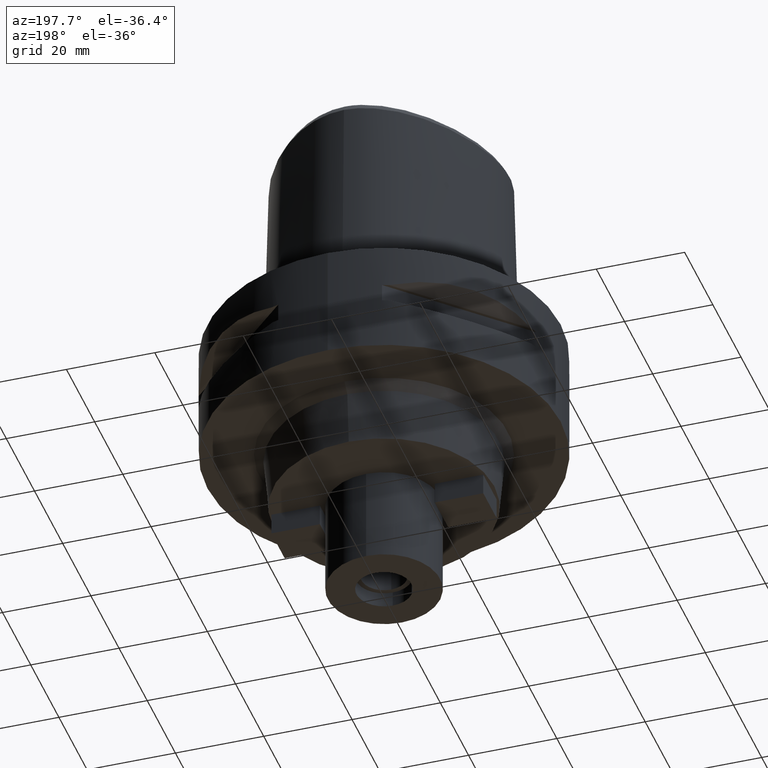
[diagram: clean part render]
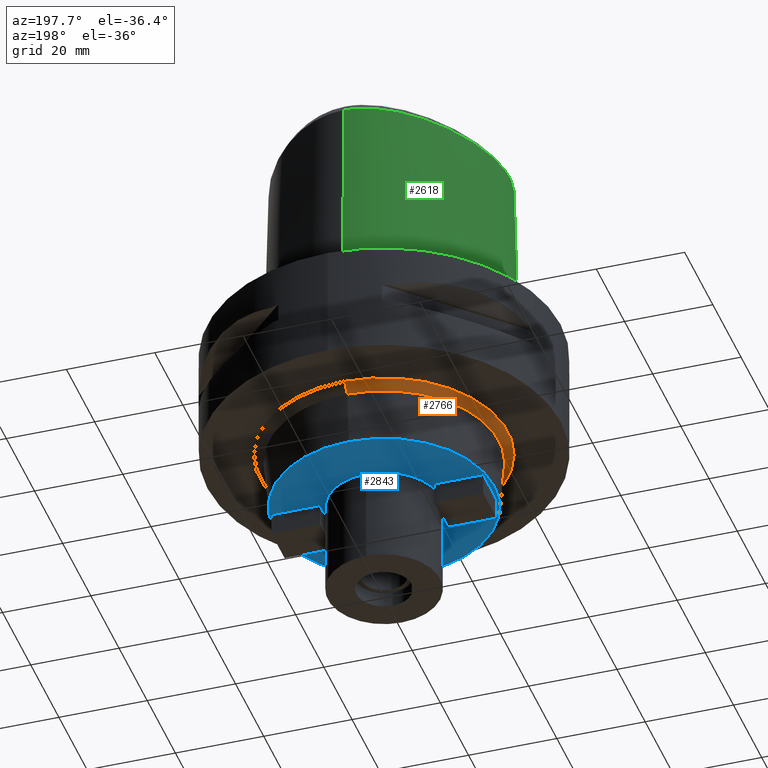
[diagram: same view with three faces highlighted in distinct colors, each labeled with its STEP entity id]
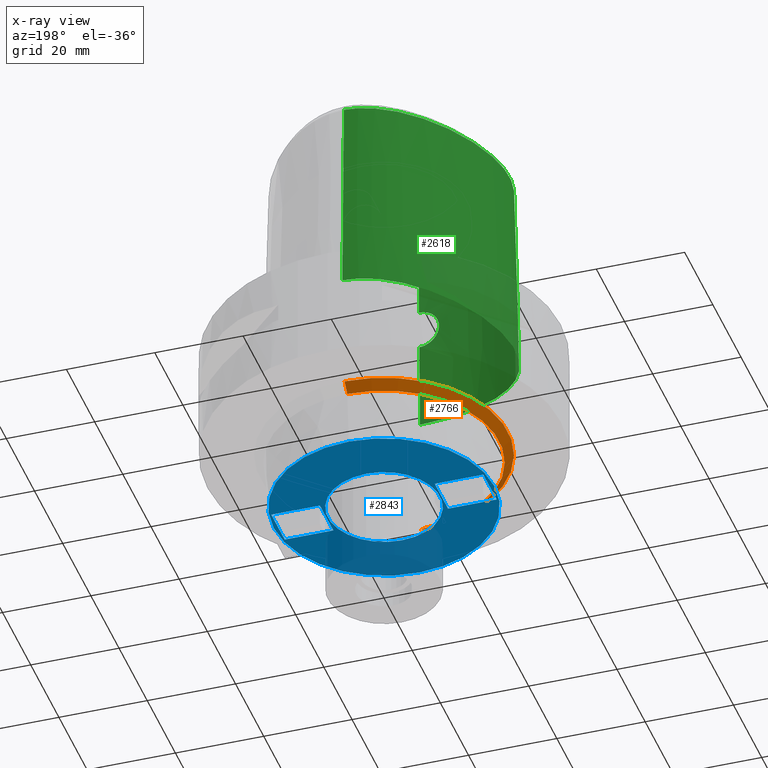
[diagram: x-ray of the same camera — body ghosted, the three highlighted faces saturated]
A machine part, auxiliary view with three faces highlighted in distinct colors.
The next image is the same camera in x-ray (body ghosted, the three faces saturated) — at least one of them is partly hidden behind the body in this view.
Their STEP definitions:

[orange] entity #2766 — the highlighted conical surface has half-angle 45 deg.
#541=CARTESIAN_POINT('',(0.E0,0.E0,-2.6E1));
#542=DIRECTION('',(0.E0,0.E0,-1.E0));
#543=DIRECTION('',(0.E0,-1.E0,0.E0));
#544=AXIS2_PLACEMENT_3D('',#541,#542,#543);
#557=DIRECTION('',(0.E0,7.071067811860E-1,-7.071067811871E-1));
#558=VECTOR('',#557,2.828427124744E0);
#559=CARTESIAN_POINT('',(0.E0,-2.804986396231E1,-2.6E1));
#560=LINE('',#559,#558);
#564=CARTESIAN_POINT('',(0.E0,0.E0,-2.8E1));
#565=DIRECTION('',(0.E0,0.E0,-1.E0));
#566=DIRECTION('',(0.E0,-1.E0,0.E0));
#567=AXIS2_PLACEMENT_3D('',#564,#565,#566);
#572=DIRECTION('',(0.E0,-7.071067811860E-1,-7.071067811871E-1));
#573=VECTOR('',#572,2.828427124744E0);
#574=CARTESIAN_POINT('',(0.E0,2.804986396231E1,-2.6E1));
#575=LINE('',#574,#573);
#1766=CARTESIAN_POINT('',(0.E0,-2.804986396231E1,-2.6E1));
#1767=CARTESIAN_POINT('',(0.E0,2.804986396231E1,-2.6E1));
#1768=VERTEX_POINT('',#1766);
#1769=VERTEX_POINT('',#1767);
#1770=CARTESIAN_POINT('',(0.E0,2.604986396231E1,-2.8E1));
#1771=VERTEX_POINT('',#1770);
#1772=CARTESIAN_POINT('',(0.E0,-2.604986396231E1,-2.8E1));
#1773=VERTEX_POINT('',#1772);
#2752=CARTESIAN_POINT('',(0.E0,0.E0,-2.7E1));
#2753=DIRECTION('',(0.E0,0.E0,1.E0));
#2754=DIRECTION('',(0.E0,1.E0,0.E0));
#2755=AXIS2_PLACEMENT_3D('',#2752,#2753,#2754);
#2756=CONICAL_SURFACE('',#2755,2.704986396231E1,4.5E1);
#2758=ORIENTED_EDGE('',*,*,#2757,.F.);
#2759=ORIENTED_EDGE('',*,*,#2745,.F.);
#2761=ORIENTED_EDGE('',*,*,#2760,.T.);
#2763=ORIENTED_EDGE('',*,*,#2762,.T.);
#2764=EDGE_LOOP('',(#2758,#2759,#2761,#2763));
#2765=FACE_OUTER_BOUND('',#2764,.F.);
#545=CIRCLE('',#544,2.804986396231E1);
#568=CIRCLE('',#567,2.604986396231E1);
#2745=EDGE_CURVE('',#1768,#1769,#545,.T.);
#2757=EDGE_CURVE('',#1769,#1771,#575,.T.);
#2760=EDGE_CURVE('',#1768,#1773,#560,.T.);
#2762=EDGE_CURVE('',#1773,#1771,#568,.T.);
#2766=ADVANCED_FACE('',(#2765),#2756,.T.);

[blue] entity #2843 — the highlighted planar face has unit normal (0, 0, -1).
#601=CARTESIAN_POINT('',(0.E0,0.E0,-4.E1));
#602=DIRECTION('',(0.E0,0.E0,1.E0));
#603=DIRECTION('',(0.E0,-1.E0,0.E0));
#604=AXIS2_PLACEMENT_3D('',#601,#602,#603);
#609=CARTESIAN_POINT('',(0.E0,0.E0,-4.E1));
#610=DIRECTION('',(0.E0,0.E0,1.E0));
#611=DIRECTION('',(0.E0,1.E0,0.E0));
#612=AXIS2_PLACEMENT_3D('',#609,#610,#611);
#617=CARTESIAN_POINT('',(0.E0,1.262610849921E-14,-4.E1));
#618=DIRECTION('',(0.E0,0.E0,-1.E0));
#619=DIRECTION('',(0.E0,-1.E0,0.E0));
#620=AXIS2_PLACEMENT_3D('',#617,#618,#619);
#625=CARTESIAN_POINT('',(0.E0,1.262610849921E-14,-4.E1));
#626=DIRECTION('',(0.E0,0.E0,-1.E0));
#627=DIRECTION('',(0.E0,1.E0,0.E0));
#628=AXIS2_PLACEMENT_3D('',#625,#626,#627);
#633=DIRECTION('',(1.E0,0.E0,0.E0));
#634=VECTOR('',#633,1.1E1);
#635=CARTESIAN_POINT('',(1.3E1,4.75E0,-4.E1));
#636=LINE('',#635,#634);
#640=DIRECTION('',(0.E0,-1.E0,0.E0));
#641=VECTOR('',#640,9.5E0);
#642=CARTESIAN_POINT('',(2.4E1,4.75E0,-4.E1));
#643=LINE('',#642,#641);
#647=DIRECTION('',(-1.E0,0.E0,0.E0));
#648=VECTOR('',#647,1.1E1);
#649=CARTESIAN_POINT('',(-1.3E1,-4.75E0,-4.E1));
#650=LINE('',#649,#648);
#654=DIRECTION('',(0.E0,1.E0,0.E0));
#655=VECTOR('',#654,9.5E0);
#656=CARTESIAN_POINT('',(-2.4E1,-4.75E0,-4.E1));
#657=LINE('',#656,#655);
#1260=DIRECTION('',(1.E0,0.E0,0.E0));
#1261=VECTOR('',#1260,1.1E1);
#1262=CARTESIAN_POINT('',(1.3E1,-4.75E0,-4.E1));
#1263=LINE('',#1262,#1261);
#1302=DIRECTION('',(0.E0,-1.E0,0.E0));
#1303=VECTOR('',#1302,9.5E0);
#1304=CARTESIAN_POINT('',(1.3E1,4.75E0,-4.E1));
#1305=LINE('',#1304,#1303);
#1330=DIRECTION('',(-1.E0,0.E0,0.E0));
#1331=VECTOR('',#1330,1.1E1);
#1332=CARTESIAN_POINT('',(-1.3E1,4.75E0,-4.E1));
#1333=LINE('',#1332,#1331);
#1372=DIRECTION('',(0.E0,1.E0,0.E0));
#1373=VECTOR('',#1372,9.5E0);
#1374=CARTESIAN_POINT('',(-1.3E1,-4.75E0,-4.E1));
#1375=LINE('',#1374,#1373);
#1774=CARTESIAN_POINT('',(0.E0,2.5E1,-4.E1));
#1775=VERTEX_POINT('',#1774);
#1776=CARTESIAN_POINT('',(0.E0,-2.5E1,-4.E1));
#1777=VERTEX_POINT('',#1776);
#1778=CARTESIAN_POINT('',(0.E0,-1.27E1,-4.E1));
#1779=CARTESIAN_POINT('',(0.E0,1.27E1,-4.E1));
#1780=VERTEX_POINT('',#1778);
#1781=VERTEX_POINT('',#1779);
#1782=CARTESIAN_POINT('',(1.3E1,-4.75E0,-4.E1));
#1783=CARTESIAN_POINT('',(2.4E1,-4.75E0,-4.E1));
#1784=VERTEX_POINT('',#1782);
#1785=VERTEX_POINT('',#1783);
#1786=CARTESIAN_POINT('',(1.3E1,4.75E0,-4.E1));
#1787=VERTEX_POINT('',#1786);
#1788=CARTESIAN_POINT('',(2.4E1,4.75E0,-4.E1));
#1789=VERTEX_POINT('',#1788);
#1790=CARTESIAN_POINT('',(-1.3E1,4.75E0,-4.E1));
#1791=CARTESIAN_POINT('',(-2.4E1,4.75E0,-4.E1));
#1792=VERTEX_POINT('',#1790);
#1793=VERTEX_POINT('',#1791);
#1794=CARTESIAN_POINT('',(-1.3E1,-4.75E0,-4.E1));
#1795=VERTEX_POINT('',#1794);
#1796=CARTESIAN_POINT('',(-2.4E1,-4.75E0,-4.E1));
#1797=VERTEX_POINT('',#1796);
#2808=CARTESIAN_POINT('',(0.E0,0.E0,-4.E1));
#2809=DIRECTION('',(0.E0,0.E0,-1.E0));
#2810=DIRECTION('',(0.E0,-1.E0,0.E0));
#2811=AXIS2_PLACEMENT_3D('',#2808,#2809,#2810);
#2812=PLANE('',#2811);
#2813=ORIENTED_EDGE('',*,*,#2787,.T.);
#2814=ORIENTED_EDGE('',*,*,#2803,.T.);
#2815=EDGE_LOOP('',(#2813,#2814));
#2816=FACE_OUTER_BOUND('',#2815,.F.);
#2818=ORIENTED_EDGE('',*,*,#2817,.T.);
#2820=ORIENTED_EDGE('',*,*,#2819,.T.);
#2821=EDGE_LOOP('',(#2818,#2820));
#2822=FACE_BOUND('',#2821,.F.);
#2824=ORIENTED_EDGE('',*,*,#2823,.F.);
#2826=ORIENTED_EDGE('',*,*,#2825,.F.);
#2828=ORIENTED_EDGE('',*,*,#2827,.T.);
#2830=ORIENTED_EDGE('',*,*,#2829,.T.);
#2831=EDGE_LOOP('',(#2824,#2826,#2828,#2830));
#2832=FACE_BOUND('',#2831,.F.);
#2834=ORIENTED_EDGE('',*,*,#2833,.F.);
#2836=ORIENTED_EDGE('',*,*,#2835,.F.);
#2838=ORIENTED_EDGE('',*,*,#2837,.T.);
#2840=ORIENTED_EDGE('',*,*,#2839,.T.);
#2841=EDGE_LOOP('',(#2834,#2836,#2838,#2840));
#2842=FACE_BOUND('',#2841,.F.);
#605=CIRCLE('',#604,2.5E1);
#613=CIRCLE('',#612,2.5E1);
#621=CIRCLE('',#620,1.27E1);
#629=CIRCLE('',#628,1.27E1);
#2787=EDGE_CURVE('',#1777,#1775,#605,.T.);
#2803=EDGE_CURVE('',#1775,#1777,#613,.T.);
#2817=EDGE_CURVE('',#1780,#1781,#621,.T.);
#2819=EDGE_CURVE('',#1781,#1780,#629,.T.);
#2823=EDGE_CURVE('',#1784,#1785,#1263,.T.);
#2825=EDGE_CURVE('',#1787,#1784,#1305,.T.);
#2827=EDGE_CURVE('',#1787,#1789,#636,.T.);
#2829=EDGE_CURVE('',#1789,#1785,#643,.T.);
#2833=EDGE_CURVE('',#1792,#1793,#1333,.T.);
#2835=EDGE_CURVE('',#1795,#1792,#1375,.T.);
#2837=EDGE_CURVE('',#1795,#1797,#650,.T.);
#2839=EDGE_CURVE('',#1797,#1793,#657,.T.);
#2843=ADVANCED_FACE('',(#2816,#2822,#2832,#2842),#2812,.T.);

[green] entity #2618 — the highlighted face is a freeform B-spline surface patch.
#206=CARTESIAN_POINT('',(-4.472216406693E0,-2.420008985674E1,4.652070903171E1));
#207=CARTESIAN_POINT('',(-5.450192240889E0,-2.410647230672E1,4.652068046684E1));
#208=CARTESIAN_POINT('',(-7.295868125464E0,-2.386544607187E1,4.652073681532E1));
#209=CARTESIAN_POINT('',(-9.676327018139E0,-2.340535491948E1,4.652071071304E1));
#210=CARTESIAN_POINT('',(-1.178100974650E1,-2.287089908615E1,4.652071522701E1));
#211=CARTESIAN_POINT('',(-1.367737467149E1,-2.227086317308E1,4.652071583380E1));
#212=CARTESIAN_POINT('',(-1.542053464101E1,-2.160307738112E1,4.652071916131E1));
#213=CARTESIAN_POINT('',(-1.702540776778E1,-2.087042032937E1,4.652071908659E1));
#214=CARTESIAN_POINT('',(-1.852256335404E1,-2.006201349530E1,4.652071628263E1));
#215=CARTESIAN_POINT('',(-1.991640706217E1,-1.917292833668E1,4.652072048184E1));
#216=CARTESIAN_POINT('',(-2.121970169644E1,-1.818345537821E1,4.652072000007E1));
#217=CARTESIAN_POINT('',(-2.235944946396E1,-1.714332743410E1,4.652071493068E1));
#218=CARTESIAN_POINT('',(-2.331676724925E1,-1.609083257782E1,4.652072138161E1));
#219=CARTESIAN_POINT('',(-2.411502598034E1,-1.502743468807E1,4.652072474034E1));
#220=CARTESIAN_POINT('',(-2.478114849194E1,-1.393594266100E1,4.652072694357E1));
#221=CARTESIAN_POINT('',(-2.534696154085E1,-1.276528132032E1,4.652070916228E1));
#222=CARTESIAN_POINT('',(-2.582385511713E1,-1.148034723413E1,4.652072265577E1));
#223=CARTESIAN_POINT('',(-2.620789791757E1,-1.004935370625E1,4.652071730953E1));
#224=CARTESIAN_POINT('',(-2.647927780078E1,-8.462523166951E0,4.652071748325E1));
#225=CARTESIAN_POINT('',(-2.661513064056E1,-6.824246183821E0,4.652071558199E1));
#226=CARTESIAN_POINT('',(-2.662581815361E1,-5.150643601300E0,4.652071862968E1));
#227=CARTESIAN_POINT('',(-2.651661760815E1,-3.424791551732E0,4.652071376667E1));
#228=CARTESIAN_POINT('',(-2.628626447768E1,-1.628090378449E0,4.652071918440E1));
#229=CARTESIAN_POINT('',(-2.592680617529E1,2.592637633223E-1,4.652071722667E1));
#230=CARTESIAN_POINT('',(-2.542085472877E1,2.270667284737E0,4.652071428316E1));
#231=CARTESIAN_POINT('',(-2.473380500959E1,4.459301869651E0,4.652071660503E1));
#232=CARTESIAN_POINT('',(-2.381314353716E1,6.881940109828E0,4.652069718368E1));
#233=CARTESIAN_POINT('',(-2.257439079201E1,9.613100221697E0,4.652071169456E1));
#234=CARTESIAN_POINT('',(-2.097407826792E1,1.257387181105E1,4.652071797991E1));
#235=CARTESIAN_POINT('',(-1.918870299019E1,1.536821832303E1,4.652069570471E1));
#236=CARTESIAN_POINT('',(-1.744924979126E1,1.771828165137E1,4.652071748362E1));
#237=CARTESIAN_POINT('',(-1.582171189436E1,1.965319312990E1,4.652071513298E1));
#238=CARTESIAN_POINT('',(-1.427763390033E1,2.128298112821E1,4.652071874395E1));
#239=CARTESIAN_POINT('',(-1.281223002315E1,2.266153840913E1,4.652071541167E1));
#240=CARTESIAN_POINT('',(-1.136857602489E1,2.386991507554E1,4.652071985536E1));
#241=CARTESIAN_POINT('',(-9.924506522521E0,2.493449388603E1,4.652071110653E1));
#242=CARTESIAN_POINT('',(-8.471074988755E0,2.586480663670E1,4.652071920670E1));
#243=CARTESIAN_POINT('',(-6.996944931033E0,2.666515511058E1,4.652071561147E1));
#244=CARTESIAN_POINT('',(-5.505662088692E0,2.732782231994E1,4.652072023718E1));
#245=CARTESIAN_POINT('',(-4.020607406773E0,2.783675802148E1,4.652071517660E1));
#246=CARTESIAN_POINT('',(-2.613174342375E0,2.817766923255E1,4.652072330322E1));
#247=CARTESIAN_POINT('',(-1.273124606858E0,2.837120251908E1,4.652065572520E1));
#248=CARTESIAN_POINT('',(-4.250220118877E-1,2.841206021535E1,4.652071719450E1));
#249=CARTESIAN_POINT('',(-1.145859173271E-11,2.841206021535E1,
4.652071719451E1));
#261=CARTESIAN_POINT('',(-4.472216406693E0,-2.420008985674E1,4.652070903171E1));
#262=CARTESIAN_POINT('',(-4.487210721186E0,-2.421685468864E1,4.579601479726E1));
#263=CARTESIAN_POINT('',(-4.516393775219E0,-2.424985511903E1,4.434671166025E1));
#264=CARTESIAN_POINT('',(-4.559961265872E0,-2.430022578469E1,4.217314625867E1));
#265=CARTESIAN_POINT('',(-4.588866160228E0,-2.433440435351E1,4.072435065553E1));
#266=CARTESIAN_POINT('',(-4.602925679451E0,-2.435121855889E1,4.E1));
#271=DIRECTION('',(1.388127457203E-9,-2.499239851702E-2,-9.996876412242E-1));
#272=VECTOR('',#271,1.045326522127E1);
#273=CARTESIAN_POINT('',(-1.451045074373E-8,-2.457504746727E1,
4.000000005214E1));
#274=LINE('',#273,#272);
#278=CARTESIAN_POINT('',(1.372734075406E-14,-2.483629963748E1,2.955E1));
#279=CARTESIAN_POINT('',(-3.648044452041E-1,-2.483629963748E1,2.955E1));
#280=CARTESIAN_POINT('',(-1.095673786418E0,-2.483004582462E1,2.946166176259E1));
#281=CARTESIAN_POINT('',(-2.131495839299E0,-2.480437039649E1,2.907075727029E1));
#282=CARTESIAN_POINT('',(-3.047884755570E0,-2.476955773457E1,2.843738326216E1));
#283=CARTESIAN_POINT('',(-3.772921718048E0,-2.473701095726E1,2.762051092436E1));
#284=CARTESIAN_POINT('',(-4.291500546626E0,-2.471661736674E1,2.664132498582E1));
#285=CARTESIAN_POINT('',(-4.559019168764E0,-2.471798807533E1,2.556841380836E1));
#286=CARTESIAN_POINT('',(-4.562529801493E0,-2.474539034349E1,2.446379196496E1));
#287=CARTESIAN_POINT('',(-4.304823227467E0,-2.479689039571E1,2.339473854995E1));
#288=CARTESIAN_POINT('',(-3.794201128708E0,-2.486598871454E1,2.240963609405E1));
#289=CARTESIAN_POINT('',(-3.069463643498E0,-2.493998733702E1,2.158041546141E1));
#290=CARTESIAN_POINT('',(-2.142564054600E0,-2.500758912759E1,2.093356923319E1));
#291=CARTESIAN_POINT('',(-1.095369505964E0,-2.505323388729E1,2.053768870060E1));
#292=CARTESIAN_POINT('',(-3.637029399209E-1,-2.506378435149E1,2.045E1));
#293=CARTESIAN_POINT('',(-2.730614060677E-12,-2.506378435149E1,2.045E1));
#298=DIRECTION('',(-9.395787097294E-13,-2.499051295404E-2,-9.996876883619E-1));
#299=VECTOR('',#298,2.045638876829E1);
#300=CARTESIAN_POINT('',(-2.730614060677E-12,-2.506378435149E1,2.045E1));
#301=LINE('',#300,#299);
#366=CARTESIAN_POINT('',(4.740256914741E-11,2.957499999999E1,
1.130207039068E-13));
#367=CARTESIAN_POINT('',(-4.515464699615E-1,2.957499999999E1,
1.130207039068E-13));
#368=CARTESIAN_POINT('',(-1.372916760122E0,2.953142679759E1,
-5.245309122717E-14));
#369=CARTESIAN_POINT('',(-2.804256439064E0,2.932635086986E1,
1.405476343484E-14));
#370=CARTESIAN_POINT('',(-4.301576252142E0,2.896724611738E1,0.E0));
#371=CARTESIAN_POINT('',(-5.873440871111E0,2.843498207136E1,0.E0));
#372=CARTESIAN_POINT('',(-7.529571954786E0,2.770512475858E1,0.E0));
#373=CARTESIAN_POINT('',(-9.276086426280E0,2.674858464922E1,0.E0));
#374=CARTESIAN_POINT('',(-1.111404831879E1,2.553317992239E1,0.E0));
#375=CARTESIAN_POINT('',(-1.303704788796E1,2.402608189558E1,0.E0));
#376=CARTESIAN_POINT('',(-1.502609410289E1,2.220040061900E1,0.E0));
#377=CARTESIAN_POINT('',(-1.704826678371E1,2.004143001713E1,0.E0));
#378=CARTESIAN_POINT('',(-1.905270363987E1,1.755833618174E1,0.E0));
#379=CARTESIAN_POINT('',(-2.097374016196E1,1.479270521397E1,0.E0));
#380=CARTESIAN_POINT('',(-2.273943649262E1,1.181923320442E1,0.E0));
#381=CARTESIAN_POINT('',(-2.426895273946E1,8.768746132568E0,0.E0));
#382=CARTESIAN_POINT('',(-2.551717833026E1,5.758149709151E0,0.E0));
#383=CARTESIAN_POINT('',(-2.647450202420E1,2.870488497827E0,0.E0));
#384=CARTESIAN_POINT('',(-2.715214958148E1,1.639445629826E-1,0.E0));
#385=CARTESIAN_POINT('',(-2.757600296869E1,-2.330151140753E0,0.E0));
#386=CARTESIAN_POINT('',(-2.777853028434E1,-4.604936563568E0,0.E0));
#387=CARTESIAN_POINT('',(-2.779201896892E1,-6.665907962843E0,0.E0));
#388=CARTESIAN_POINT('',(-2.764550045227E1,-8.529293279311E0,0.E0));
#389=CARTESIAN_POINT('',(-2.736302078182E1,-1.021361246240E1,0.E0));
#390=CARTESIAN_POINT('',(-2.696253231088E1,-1.174092309720E1,0.E0));
#391=CARTESIAN_POINT('',(-2.645808390493E1,-1.312695917105E1,0.E0));
#392=CARTESIAN_POINT('',(-2.585698413882E1,-1.439407758812E1,0.E0));
#393=CARTESIAN_POINT('',(-2.514815078172E1,-1.557755152720E1,0.E0));
#394=CARTESIAN_POINT('',(-2.430633309777E1,-1.671998998328E1,0.E0));
#395=CARTESIAN_POINT('',(-2.330319969480E1,-1.784429725758E1,0.E0));
#396=CARTESIAN_POINT('',(-2.212004439291E1,-1.894721216630E1,0.E0));
#397=CARTESIAN_POINT('',(-2.073317683032E1,-2.002557323264E1,0.E0));
#398=CARTESIAN_POINT('',(-1.911408564811E1,-2.107266506045E1,0.E0));
#399=CARTESIAN_POINT('',(-1.723402086985E1,-2.207536005230E1,0.E0));
#400=CARTESIAN_POINT('',(-1.506569661307E1,-2.301407899118E1,0.E0));
#401=CARTESIAN_POINT('',(-1.259171130108E1,-2.386112128053E1,0.E0));
#402=CARTESIAN_POINT('',(-9.807532041514E0,-2.458256984343E1,0.E0));
#403=CARTESIAN_POINT('',(-6.739703935874E0,-2.513937213858E1,
1.485092390446E-14));
#404=CARTESIAN_POINT('',(-3.433528326300E0,-2.549351538963E1,
-5.542440255078E-14));
#405=CARTESIAN_POINT('',(-1.160946323202E0,-2.5575E1,1.194229900155E-13));
#406=CARTESIAN_POINT('',(-2.195100142531E-11,-2.5575E1,1.194229900155E-13));
#1057=DIRECTION('',(1.264872542883E-12,2.499051293969E-2,-9.996876883622E-1));
#1058=VECTOR('',#1057,4.653525069487E1);
#1059=CARTESIAN_POINT('',(-1.145859173271E-11,2.841206021535E1,
4.652071719451E1));
#1060=LINE('',#1059,#1058);
#1074=CARTESIAN_POINT('',(-1.451045074373E-8,-2.457504746727E1,
4.000000005214E1));
#1075=CARTESIAN_POINT('',(-5.124223382063E-1,-2.457504746706E1,
4.000000005214E1));
#1076=CARTESIAN_POINT('',(-1.536621750938E0,-2.455890147190E1,
3.999999997567E1));
#1077=CARTESIAN_POINT('',(-3.071957665953E0,-2.448406991543E1,
4.000000000695E1));
#1078=CARTESIAN_POINT('',(-4.092928315870E0,-2.440134250294E1,4.E1));
#1079=CARTESIAN_POINT('',(-4.602925679451E0,-2.435121855889E1,4.E1));
#1695=CARTESIAN_POINT('',(-4.602965076336E0,-2.435127131301E1,4.E1));
#1696=VERTEX_POINT('',#1695);
#1697=VERTEX_POINT('',#261);
#1698=CARTESIAN_POINT('',(-1.145859173271E-11,2.841206021535E1,
4.652071719451E1));
#1699=VERTEX_POINT('',#1698);
#1700=VERTEX_POINT('',#366);
#1701=VERTEX_POINT('',#406);
#1702=VERTEX_POINT('',#1074);
#1703=CARTESIAN_POINT('',(1.372734075387E-14,-2.483629963748E1,2.955E1));
#1704=VERTEX_POINT('',#1703);
#1705=VERTEX_POINT('',#293);
#2493=CARTESIAN_POINT('',(9.115101686235E-1,2.956851176057E1,
-9.304145002686E-1));
#2494=CARTESIAN_POINT('',(8.850788437967E-1,2.916624660521E1,1.519677017105E1));
#2495=CARTESIAN_POINT('',(8.586475189698E-1,2.876398144986E1,3.132395484238E1));
#2496=CARTESIAN_POINT('',(8.322161941430E-1,2.836171629451E1,4.745113951370E1));
#2497=CARTESIAN_POINT('',(6.077626424070E-1,2.958843421425E1,
-9.304145002686E-1));
#2498=CARTESIAN_POINT('',(5.902542483099E-1,2.918556699455E1,1.519677017105E1));
#2499=CARTESIAN_POINT('',(5.727458542128E-1,2.878269977485E1,3.132395484238E1));
#2500=CARTESIAN_POINT('',(5.552374601157E-1,2.837983255515E1,4.745113951370E1));
#2501=CARTESIAN_POINT('',(-7.475778414593E-1,2.963225228787E1,
-9.304145002686E-1));
#2502=CARTESIAN_POINT('',(-7.257524939728E-1,2.922811258682E1,
1.519677017105E1));
#2503=CARTESIAN_POINT('',(-7.039271464863E-1,2.882397288577E1,
3.132395484238E1));
#2504=CARTESIAN_POINT('',(-6.821017989997E-1,2.841983318471E1,
4.745113951370E1));
#2505=CARTESIAN_POINT('',(-3.154109046632E0,2.936302093432E1,
-9.304145002686E-1));
#2506=CARTESIAN_POINT('',(-3.067023396541E0,2.896669973937E1,1.519677017105E1));
#2507=CARTESIAN_POINT('',(-2.979937746450E0,2.857037854443E1,3.132395484238E1));
#2508=CARTESIAN_POINT('',(-2.892852096359E0,2.817405734948E1,4.745113951370E1));
#2509=CARTESIAN_POINT('',(-6.271543170741E0,2.837237220576E1,
-9.304145002686E-1));
#2510=CARTESIAN_POINT('',(-6.114741920969E0,2.799897532672E1,1.519677017105E1));
#2511=CARTESIAN_POINT('',(-5.957940671198E0,2.762557844768E1,3.132395484238E1));
#2512=CARTESIAN_POINT('',(-5.801139421427E0,2.725218156864E1,4.745113951370E1));
#2513=CARTESIAN_POINT('',(-9.316733117574E0,2.681182150690E1,
-9.304145002686E-1));
#2514=CARTESIAN_POINT('',(-9.105791460926E0,2.646675913731E1,1.519677017105E1));
#2515=CARTESIAN_POINT('',(-8.894849804279E0,2.612169676773E1,3.132395484238E1));
#2516=CARTESIAN_POINT('',(-8.683908147631E0,2.577663439814E1,4.745113951370E1));
#2517=CARTESIAN_POINT('',(-1.323332856331E1,2.406149249949E1,
-9.304145002686E-1));
#2518=CARTESIAN_POINT('',(-1.296695409375E1,2.375598709178E1,1.519677017105E1));
#2519=CARTESIAN_POINT('',(-1.270057962419E1,2.345048168407E1,3.132395484238E1));
#2520=CARTESIAN_POINT('',(-1.243420515463E1,2.314497627636E1,4.745113951370E1));
#2521=CARTESIAN_POINT('',(-1.777103258674E1,1.953703864484E1,
-9.304145002686E-1));
#2522=CARTESIAN_POINT('',(-1.745811261950E1,1.927961880083E1,1.519677017105E1));
#2523=CARTESIAN_POINT('',(-1.714519265227E1,1.902219895682E1,3.132395484238E1));
#2524=CARTESIAN_POINT('',(-1.683227268503E1,1.876477911281E1,4.745113951370E1));
#2525=CARTESIAN_POINT('',(-2.235908247819E1,1.290902243080E1,
-9.304145002686E-1));
#2526=CARTESIAN_POINT('',(-2.200846692271E1,1.270659196355E1,1.519677017105E1));
#2527=CARTESIAN_POINT('',(-2.165785136722E1,1.250416149629E1,3.132395484238E1));
#2528=CARTESIAN_POINT('',(-2.130723581174E1,1.230173102903E1,4.745113951370E1));
#2529=CARTESIAN_POINT('',(-2.523075706237E1,6.836210430790E0,
-9.304145002686E-1));
#2530=CARTESIAN_POINT('',(-2.485610464562E1,6.683875463775E0,1.519677017105E1));
#2531=CARTESIAN_POINT('',(-2.448145222886E1,6.531540496761E0,3.132395484238E1));
#2532=CARTESIAN_POINT('',(-2.410679981211E1,6.379205529746E0,4.745113951370E1));
#2533=CARTESIAN_POINT('',(-2.679474625830E1,1.906447387483E0,
-9.304145002686E-1));
#2534=CARTESIAN_POINT('',(-2.640443225466E1,1.802817671104E0,1.519677017105E1));
#2535=CARTESIAN_POINT('',(-2.601411825103E1,1.699187954725E0,3.132395484238E1));
#2536=CARTESIAN_POINT('',(-2.562380424739E1,1.595558238346E0,4.745113951370E1));
#2537=CARTESIAN_POINT('',(-2.756041892299E1,-1.762105663674E0,
-9.304145002686E-1));
#2538=CARTESIAN_POINT('',(-2.716099298029E1,-1.823107493332E0,
1.519677017105E1));
#2539=CARTESIAN_POINT('',(-2.676156703758E1,-1.884109322991E0,
3.132395484238E1));
#2540=CARTESIAN_POINT('',(-2.636214109488E1,-1.945111152650E0,
4.745113951370E1));
#2541=CARTESIAN_POINT('',(-2.787808443159E1,-5.337383714054E0,
-9.304145002686E-1));
#2542=CARTESIAN_POINT('',(-2.747379250646E1,-5.347524337125E0,
1.519677017105E1));
#2543=CARTESIAN_POINT('',(-2.706950058133E1,-5.357664960197E0,
3.132395484238E1));
#2544=CARTESIAN_POINT('',(-2.666520865620E1,-5.367805583268E0,
4.745113951370E1));
#2545=CARTESIAN_POINT('',(-2.770696775960E1,-8.754869100908E0,
-9.304145002686E-1));
#2546=CARTESIAN_POINT('',(-2.730517725919E1,-8.703986976835E0,
1.519677017105E1));
#2547=CARTESIAN_POINT('',(-2.690338675878E1,-8.653104852762E0,
3.132395484238E1));
#2548=CARTESIAN_POINT('',(-2.650159625837E1,-8.602222728688E0,
4.745113951370E1));
#2549=CARTESIAN_POINT('',(-2.712297208038E1,-1.141745865557E1,
-9.304145002686E-1));
#2550=CARTESIAN_POINT('',(-2.673375369802E1,-1.130662581331E1,
1.519677017105E1));
#2551=CARTESIAN_POINT('',(-2.634453531566E1,-1.119579297106E1,
3.132395484238E1));
#2552=CARTESIAN_POINT('',(-2.595531693331E1,-1.108496012881E1,
4.745113951370E1));
#2553=CARTESIAN_POINT('',(-2.637046814594E1,-1.340391019843E1,
-9.304145002686E-1));
#2554=CARTESIAN_POINT('',(-2.600056140103E1,-1.324168030058E1,
1.519677017105E1));
#2555=CARTESIAN_POINT('',(-2.563065465613E1,-1.307945040273E1,
3.132395484238E1));
#2556=CARTESIAN_POINT('',(-2.526074791123E1,-1.291722050488E1,
4.745113951370E1));
#2557=CARTESIAN_POINT('',(-2.565830880215E1,-1.481383149389E1,
-9.304145002686E-1));
#2558=CARTESIAN_POINT('',(-2.530843714061E1,-1.461183299568E1,
1.519677017105E1));
#2559=CARTESIAN_POINT('',(-2.495856547908E1,-1.440983449747E1,
3.132395484238E1));
#2560=CARTESIAN_POINT('',(-2.460869381754E1,-1.420783599927E1,
4.745113951370E1));
#2561=CARTESIAN_POINT('',(-2.479336081496E1,-1.613554022487E1,
-9.304145002686E-1));
#2562=CARTESIAN_POINT('',(-2.446791222784E1,-1.589630653555E1,
1.519677017105E1));
#2563=CARTESIAN_POINT('',(-2.414246364072E1,-1.565707284623E1,
3.132395484238E1));
#2564=CARTESIAN_POINT('',(-2.381701505360E1,-1.541783915691E1,
4.745113951370E1));
#2565=CARTESIAN_POINT('',(-2.344929528197E1,-1.778045351989E1,
-9.304145002686E-1));
#2566=CARTESIAN_POINT('',(-2.315870204419E1,-1.749879693548E1,
1.519677017105E1));
#2567=CARTESIAN_POINT('',(-2.286810880640E1,-1.721714035107E1,
3.132395484238E1));
#2568=CARTESIAN_POINT('',(-2.257751556862E1,-1.693548376665E1,
4.745113951370E1));
#2569=CARTESIAN_POINT('',(-2.143542293284E1,-1.961750339179E1,
-9.304145002686E-1));
#2570=CARTESIAN_POINT('',(-2.119046238674E1,-1.929498366329E1,
1.519677017105E1));
#2571=CARTESIAN_POINT('',(-2.094550184064E1,-1.897246393479E1,
3.132395484238E1));
#2572=CARTESIAN_POINT('',(-2.070054129453E1,-1.864994420629E1,
4.745113951370E1));
#2573=CARTESIAN_POINT('',(-1.856135208425E1,-2.147443746742E1,
-9.304145002686E-1));
#2574=CARTESIAN_POINT('',(-1.836798846506E1,-2.111924011543E1,
1.519677017105E1));
#2575=CARTESIAN_POINT('',(-1.817462484587E1,-2.076404276344E1,
3.132395484238E1));
#2576=CARTESIAN_POINT('',(-1.798126122668E1,-2.040884541145E1,
4.745113951370E1));
#2577=CARTESIAN_POINT('',(-1.530623779621E1,-2.298697010242E1,
-9.304145002686E-1));
#2578=CARTESIAN_POINT('',(-1.515935281812E1,-2.261055603546E1,
1.519677017105E1));
#2579=CARTESIAN_POINT('',(-1.501246784003E1,-2.223414196850E1,
3.132395484238E1));
#2580=CARTESIAN_POINT('',(-1.486558286194E1,-2.185772790154E1,
4.745113951370E1));
#2581=CARTESIAN_POINT('',(-1.174634101500E1,-2.415815461151E1,
-9.304145002686E-1));
#2582=CARTESIAN_POINT('',(-1.164093423755E1,-2.376831842874E1,
1.519677017105E1));
#2583=CARTESIAN_POINT('',(-1.153552746011E1,-2.337848224597E1,
3.132395484238E1));
#2584=CARTESIAN_POINT('',(-1.143012068266E1,-2.298864606321E1,
4.745113951370E1));
#2585=CARTESIAN_POINT('',(-6.695047936585E0,-2.526858194679E1,
-9.304145002686E-1));
#2586=CARTESIAN_POINT('',(-6.639625075431E0,-2.486795320239E1,
1.519677017105E1));
#2587=CARTESIAN_POINT('',(-6.584202214277E0,-2.446732445798E1,
3.132395484238E1));
#2588=CARTESIAN_POINT('',(-6.528779353123E0,-2.406669571357E1,
4.745113951370E1));
#2589=CARTESIAN_POINT('',(-2.393548608078E0,-2.562160468896E1,
-9.304145002686E-1));
#2590=CARTESIAN_POINT('',(-2.373852717892E0,-2.521827344200E1,
1.519677017105E1));
#2591=CARTESIAN_POINT('',(-2.354156827707E0,-2.481494219505E1,
3.132395484238E1));
#2592=CARTESIAN_POINT('',(-2.334460937521E0,-2.441161094809E1,
4.745113951370E1));
#2593=CARTESIAN_POINT('',(5.689259951295E-1,-2.559577895969E1,
-9.304145002686E-1));
#2594=CARTESIAN_POINT('',(5.642418782911E-1,-2.519264541699E1,
1.519677017105E1));
#2595=CARTESIAN_POINT('',(5.595577614527E-1,-2.478951187429E1,
3.132395484238E1));
#2596=CARTESIAN_POINT('',(5.548736446143E-1,-2.438637833160E1,
4.745113951370E1));
#2597=CARTESIAN_POINT('',(8.532670504086E-1,-2.559082387589E1,
-9.304145002686E-1));
#2598=CARTESIAN_POINT('',(8.462420186861E-1,-2.518772735034E1,
1.519677017105E1));
#2599=CARTESIAN_POINT('',(8.392169869636E-1,-2.478463082479E1,
3.132395484238E1));
#2600=CARTESIAN_POINT('',(8.321919552412E-1,-2.438153429924E1,
4.745113951370E1));
#2601=B_SPLINE_SURFACE_WITH_KNOTS('',3,3,((#2493,#2494,#2495,#2496),(#2497,
#2498,#2499,#2500),(#2501,#2502,#2503,#2504),(#2505,#2506,#2507,#2508),(#2509,
#2510,#2511,#2512),(#2513,#2514,#2515,#2516),(#2517,#2518,#2519,#2520),(#2521,
#2522,#2523,#2524),(#2525,#2526,#2527,#2528),(#2529,#2530,#2531,#2532),(#2533,
#2534,#2535,#2536),(#2537,#2538,#2539,#2540),(#2541,#2542,#2543,#2544),(#2545,
#2546,#2547,#2548),(#2549,#2550,#2551,#2552),(#2553,#2554,#2555,#2556),(#2557,
#2558,#2559,#2560),(#2561,#2562,#2563,#2564),(#2565,#2566,#2567,#2568),(#2569,
#2570,#2571,#2572),(#2573,#2574,#2575,#2576),(#2577,#2578,#2579,#2580),(#2581,
#2582,#2583,#2584),(#2585,#2586,#2587,#2588),(#2589,#2590,#2591,#2592),(#2593,
#2594,#2595,#2596),(#2597,#2598,#2599,#2600)),.UNSPECIFIED.,.F.,.F.,.F.,(4,1,1,
1,1,1,1,1,1,1,1,1,1,1,1,1,1,1,1,1,1,1,1,1,4),(4,4),(-1.204223939045E-2,0.E0,
4.166666666726E-2,8.333333333388E-2,1.250000000005E-1,1.666666666672E-1,
2.500000000004E-1,3.333333333336E-1,4.166666666670E-1,4.583333333335E-1,
5.000000000002E-1,5.416666666668E-1,5.833333333334E-1,6.250000000001E-1,
6.458333333333E-1,6.666666666667E-1,6.875E-1,7.083333333333E-1,7.5E-1,
7.916666666666E-1,8.333333333332E-1,8.749999999998E-1,9.166666666665E-1,1.E0,
1.008851807893E0),(4.849781545108E-9,9.999997526611E-1),.UNSPECIFIED.);
#2603=ORIENTED_EDGE('',*,*,#2602,.F.);
#2605=ORIENTED_EDGE('',*,*,#2604,.F.);
#2606=ORIENTED_EDGE('',*,*,#2486,.F.);
#2607=ORIENTED_EDGE('',*,*,#1915,.T.);
#2609=ORIENTED_EDGE('',*,*,#2608,.F.);
#2611=ORIENTED_EDGE('',*,*,#2610,.T.);
#2613=ORIENTED_EDGE('',*,*,#2612,.T.);
#2615=ORIENTED_EDGE('',*,*,#2614,.T.);
#2616=EDGE_LOOP('',(#2603,#2605,#2606,#2607,#2609,#2611,#2613,#2615));
#2617=FACE_OUTER_BOUND('',#2616,.F.);
#250=B_SPLINE_CURVE_WITH_KNOTS('',3,(#206,#207,#208,#209,#210,#211,#212,#213,
#214,#215,#216,#217,#218,#219,#220,#221,#222,#223,#224,#225,#226,#227,#228,#229,
#230,#231,#232,#233,#234,#235,#236,#237,#238,#239,#240,#241,#242,#243,#244,#245,
#246,#247,#248,#249),.UNSPECIFIED.,.F.,.F.,(4,1,1,1,1,1,1,1,1,1,1,1,1,1,1,1,1,1,
1,1,1,1,1,1,1,1,1,1,1,1,1,1,1,1,1,1,1,1,1,1,1,4),(0.E0,2.439024390244E-2,
4.878048780488E-2,7.317073170732E-2,9.756097560976E-2,1.219512195122E-1,
1.463414634146E-1,1.707317073171E-1,1.951219512195E-1,2.195121951220E-1,
2.439024390244E-1,2.682926829268E-1,2.926829268293E-1,3.170731707317E-1,
3.414634146341E-1,3.658536585366E-1,3.902439024390E-1,4.146341463415E-1,
4.390243902439E-1,4.634146341463E-1,4.878048780488E-1,5.121951219512E-1,
5.365853658537E-1,5.609756097561E-1,5.853658536585E-1,6.097560975610E-1,
6.341463414634E-1,6.585365853659E-1,6.829268292683E-1,7.073170731707E-1,
7.317073170732E-1,7.560975609756E-1,7.804878048780E-1,8.048780487805E-1,
8.292682926829E-1,8.536585365854E-1,8.780487804878E-1,9.024390243902E-1,
9.268292682927E-1,9.512195121951E-1,9.756097560976E-1,1.E0),.UNSPECIFIED.);
#267=B_SPLINE_CURVE_WITH_KNOTS('',3,(#261,#262,#263,#264,#265,#266),
.UNSPECIFIED.,.F.,.F.,(4,1,1,4),(0.E0,3.333333333333E-1,6.666666666667E-1,1.E0),
.UNSPECIFIED.);
#294=B_SPLINE_CURVE_WITH_KNOTS('',3,(#278,#279,#280,#281,#282,#283,#284,#285,
#286,#287,#288,#289,#290,#291,#292,#293),.UNSPECIFIED.,.F.,.F.,(4,1,1,1,1,1,1,1,
1,1,1,1,1,4),(0.E0,7.692307692308E-2,1.538461538462E-1,2.307692307692E-1,
3.076923076923E-1,3.846153846154E-1,4.615384615385E-1,5.384615384615E-1,
6.153846153846E-1,6.923076923077E-1,7.692307692308E-1,8.461538461538E-1,
9.230769230769E-1,1.E0),.UNSPECIFIED.);
#407=B_SPLINE_CURVE_WITH_KNOTS('',3,(#366,#367,#368,#369,#370,#371,#372,#373,
#374,#375,#376,#377,#378,#379,#380,#381,#382,#383,#384,#385,#386,#387,#388,#389,
#390,#391,#392,#393,#394,#395,#396,#397,#398,#399,#400,#401,#402,#403,#404,#405,
#406),.UNSPECIFIED.,.F.,.F.,(4,1,1,1,1,1,1,1,1,1,1,1,1,1,1,1,1,1,1,1,1,1,1,1,1,
1,1,1,1,1,1,1,1,1,1,1,1,1,4),(0.E0,2.631578947368E-2,5.263157894737E-2,
7.894736842105E-2,1.052631578947E-1,1.315789473684E-1,1.578947368421E-1,
1.842105263158E-1,2.105263157895E-1,2.368421052632E-1,2.631578947368E-1,
2.894736842105E-1,3.157894736842E-1,3.421052631579E-1,3.684210526316E-1,
3.947368421053E-1,4.210526315789E-1,4.473684210526E-1,4.736842105263E-1,5.E-1,
5.263157894737E-1,5.526315789474E-1,5.789473684211E-1,6.052631578947E-1,
6.315789473684E-1,6.578947368421E-1,6.842105263158E-1,7.105263157895E-1,
7.368421052632E-1,7.631578947368E-1,7.894736842105E-1,8.157894736842E-1,
8.421052631579E-1,8.684210526316E-1,8.947368421053E-1,9.210526315789E-1,
9.473684210526E-1,9.736842105263E-1,1.E0),.UNSPECIFIED.);
#1080=B_SPLINE_CURVE_WITH_KNOTS('',3,(#1074,#1075,#1076,#1077,#1078,#1079),
.UNSPECIFIED.,.F.,.F.,(4,1,1,4),(0.E0,3.333333333333E-1,6.666666666667E-1,1.E0),
.UNSPECIFIED.);
#1915=EDGE_CURVE('',#1697,#1696,#267,.T.);
#2486=EDGE_CURVE('',#1697,#1699,#250,.T.);
#2602=EDGE_CURVE('',#1700,#1701,#407,.T.);
#2604=EDGE_CURVE('',#1699,#1700,#1060,.T.);
#2608=EDGE_CURVE('',#1702,#1696,#1080,.T.);
#2610=EDGE_CURVE('',#1702,#1704,#274,.T.);
#2612=EDGE_CURVE('',#1704,#1705,#294,.T.);
#2614=EDGE_CURVE('',#1705,#1701,#301,.T.);
#2618=ADVANCED_FACE('',(#2617),#2601,.T.);